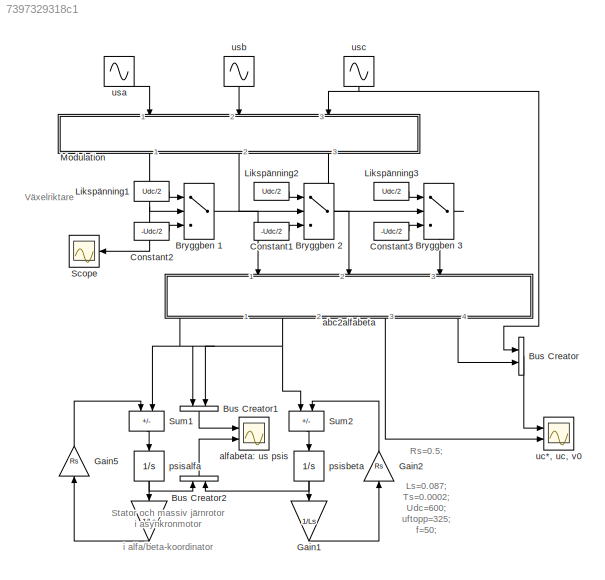
MODEL slx_7397329318c1
KIND model
CONFIG AbsTol = auto
CONFIG EnableMultiTasking = on
CONFIG FixedStep = auto
CONFIG MaxStep = auto
CONFIG MinStep = auto
CONFIG RelTol = 1e-6
CONFIG SampleTimeConstraint = Unconstrained
CONFIG SolverName = ode45
CONFIG StartTime = 0.0
CONFIG StopTime = 0.05
BLOCK [Switch] Bryggben 1
BLOCK [Switch] Bryggben 2
BLOCK [Switch] Bryggben 3
BLOCK [BusCreator] Bus Creator
  DisplayOption = bar
  InheritFromInputs = on
  Inputs = 2
  Ports = [2, 1]
BLOCK [BusCreator] Bus Creator1
  DisplayOption = bar
  InheritFromInputs = on
  Inputs = 2
  NameLocation = left
  Ports = [2, 1]
BLOCK [BusCreator] Bus Creator2
  DisplayOption = bar
  InheritFromInputs = on
  Inputs = 2
  NameLocation = right
  Ports = [2, 1]
BLOCK [Constant] Constant1
  Value = -Udc/2
BLOCK [Constant] Constant2
  Value = -Udc/2
BLOCK [Constant] Constant3
  Value = -Udc/2
BLOCK [Gain] Gain1
  Gain = 1/Ls
  NameLocation = left
  OutDataTypeStr = Inherit: Same as input
  ParamDataTypeStr = Inherit: Same as input
  SaturateOnIntegerOverflow = on
BLOCK [Gain] Gain2
  Gain = Rs
  NameLocation = right
  OutDataTypeStr = Inherit: Same as input
  ParamDataTypeStr = Inherit: Same as input
  SaturateOnIntegerOverflow = on
BLOCK [Gain] Gain3
  Gain = 1/Ls
  NameLocation = left
  OutDataTypeStr = Inherit: Same as input
  ParamDataTypeStr = Inherit: Same as input
  SaturateOnIntegerOverflow = on
BLOCK [Gain] Gain5
  Gain = Rs
  NameLocation = right
  OutDataTypeStr = Inherit: Same as input
  ParamDataTypeStr = Inherit: Same as input
  SaturateOnIntegerOverflow = on
BLOCK [Constant] Likspänning1
  NameLocation = top
  Value = Udc/2
BLOCK [Constant] Likspänning2
  NameLocation = top
  Value = Udc/2
BLOCK [Constant] Likspänning3
  NameLocation = top
  Value = Udc/2
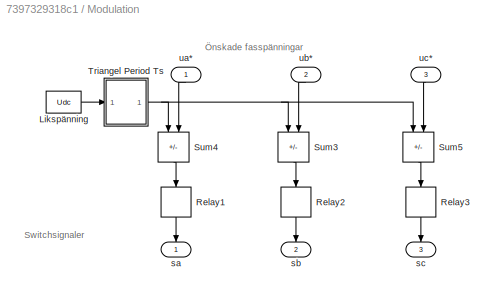
BLOCK [SubSystem] Modulation
  NameLocation = right
  Ports = [3, 3]
  RequestExecContextInheritance = off
BLOCK [Constant] Modulation/Likspänning
  Value = Udc
BLOCK [Relay] Modulation/Relay1
  NameLocation = right
  OffOutputValue = -0.001
  OnOutputValue = 1.01
BLOCK [Relay] Modulation/Relay2
  NameLocation = right
  OffOutputValue = -0.01
  OnOutputValue = 1.01
BLOCK [Relay] Modulation/Relay3
  NameLocation = right
  OffOutputValue = -0.01
  OnOutputValue = 1.01
BLOCK [Sum] Modulation/Sum3
  IconShape = rectangular
  InputSameDT = on
  Inputs = -+
  NameLocation = right
  OutDataTypeStr = Inherit: Same as first input
  Ports = [2, 1]
  SaturateOnIntegerOverflow = on
BLOCK [Sum] Modulation/Sum4
  IconShape = rectangular
  InputSameDT = on
  Inputs = -+
  NameLocation = right
  OutDataTypeStr = Inherit: Same as first input
  Ports = [2, 1]
  SaturateOnIntegerOverflow = on
BLOCK [Sum] Modulation/Sum5
  IconShape = rectangular
  InputSameDT = on
  Inputs = -+
  NameLocation = right
  OutDataTypeStr = Inherit: Same as first input
  Ports = [2, 1]
  SaturateOnIntegerOverflow = on
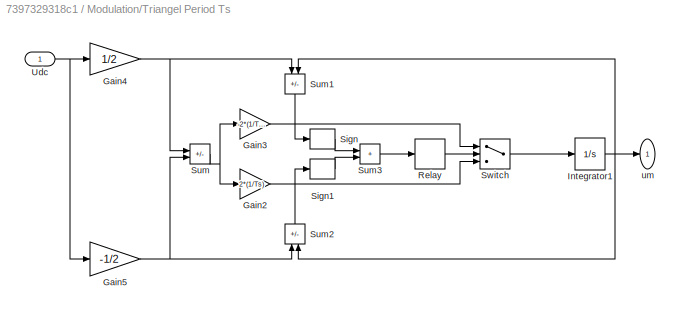
BLOCK [SubSystem] Modulation/Triangel Period Ts
  NameLocation = top
  Ports = [1, 1]
  RequestExecContextInheritance = off
BLOCK [Gain] Modulation/Triangel Period Ts/Gain2
  Gain = 2*(1/Ts)
  OutDataTypeStr = Inherit: Same as input
  ParamDataTypeStr = Inherit: Same as input
  SaturateOnIntegerOverflow = on
BLOCK [Gain] Modulation/Triangel Period Ts/Gain3
  Gain = -2*(1/Ts)
  OutDataTypeStr = Inherit: Same as input
  ParamDataTypeStr = Inherit: Same as input
  SaturateOnIntegerOverflow = on
BLOCK [Gain] Modulation/Triangel Period Ts/Gain4
  Gain = 1/2
  OutDataTypeStr = Inherit: Same as input
  ParamDataTypeStr = Inherit: Same as input
  SaturateOnIntegerOverflow = on
BLOCK [Gain] Modulation/Triangel Period Ts/Gain5
  Gain = -1/2
  OutDataTypeStr = Inherit: Same as input
  ParamDataTypeStr = Inherit: Same as input
  SaturateOnIntegerOverflow = on
BLOCK [Integrator] Modulation/Triangel Period Ts/Integrator1
  Ports = [1, 1]
BLOCK [Relay] Modulation/Triangel Period Ts/Relay
  OffOutputValue = -1
  OffSwitchValue = -1
  OnSwitchValue = 1
BLOCK [Signum] Modulation/Triangel Period Ts/Sign
BLOCK [Signum] Modulation/Triangel Period Ts/Sign1
BLOCK [Sum] Modulation/Triangel Period Ts/Sum
  IconShape = rectangular
  InputSameDT = on
  Inputs = +-
  OutDataTypeStr = Inherit: Same as first input
  Ports = [2, 1]
  SaturateOnIntegerOverflow = on
BLOCK [Sum] Modulation/Triangel Period Ts/Sum1
  IconShape = rectangular
  InputSameDT = on
  Inputs = -+
  NameLocation = left
  OutDataTypeStr = Inherit: Same as first input
  Ports = [2, 1]
  SaturateOnIntegerOverflow = on
BLOCK [Sum] Modulation/Triangel Period Ts/Sum2
  IconShape = rectangular
  InputSameDT = on
  Inputs = -+
  NameLocation = right
  OutDataTypeStr = Inherit: Same as first input
  Ports = [2, 1]
  SaturateOnIntegerOverflow = on
BLOCK [Sum] Modulation/Triangel Period Ts/Sum3
  IconShape = rectangular
  InputSameDT = on
  OutDataTypeStr = Inherit: Same as first input
  Ports = [2, 1]
  SaturateOnIntegerOverflow = on
BLOCK [Switch] Modulation/Triangel Period Ts/Switch
BLOCK [Inport] Modulation/Triangel Period Ts/Udc
BLOCK [Outport] Modulation/Triangel Period Ts/um
  VectorParamsAs1DForOutWhenUnconnected = off
BLOCK [Outport] Modulation/sa
  NameLocation = right
  VectorParamsAs1DForOutWhenUnconnected = off
BLOCK [Outport] Modulation/sb
  NameLocation = right
  Port = 2
  VectorParamsAs1DForOutWhenUnconnected = off
BLOCK [Outport] Modulation/sc
  NameLocation = right
  Port = 3
  VectorParamsAs1DForOutWhenUnconnected = off
BLOCK [Inport] Modulation/ua*
  NameLocation = right
BLOCK [Inport] Modulation/ub*
  NameLocation = right
  Port = 2
BLOCK [Inport] Modulation/uc*
  NameLocation = right
  Port = 3
BLOCK [Scope] Scope
  Floating = off
  NameLocation = top
  NumInputPorts = 1
  Ports = [1]
  ScopeSpecificationString = C++SS(StrPVP('Location','[39, 367, 1130, 606]'),StrPVP('Open','off'),StrPVP('ZoomMode','yonly'),MxPVP('AxesTitles',54,'struct(''axes1'',''%<SignalLabel>'')'),StrPVP('ShowLegends','off'),StrPVP('TimeRange','0.05'),StrPVP('YMin','-0.5034062253001612'),StrPVP('YMax','1.515864353193573'),StrPVP('SaveName','ScopeData2'),StrPVP('DataFormat','StructureWithTime'),StrPVP('LimitDataPoints','off'),StrPVP('Bl...<+88ch>
BLOCK [Sum] Sum1
  IconShape = rectangular
  Inputs = -+
  NameLocation = left
  Ports = [2, 1]
  SaturateOnIntegerOverflow = on
BLOCK [Sum] Sum2
  IconShape = rectangular
  Inputs = +-
  NameLocation = left
  Ports = [2, 1]
  SaturateOnIntegerOverflow = on
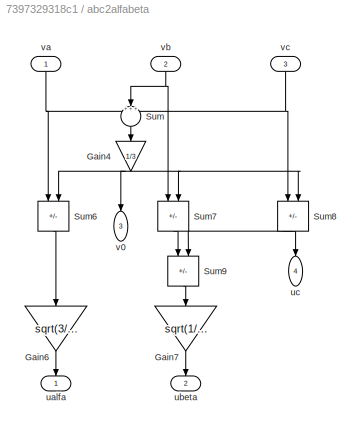
BLOCK [SubSystem] abc2alfabeta
  NameLocation = left
  Ports = [3, 4]
  RequestExecContextInheritance = off
BLOCK [Gain] abc2alfabeta/Gain4
  Gain = 1/3
  NameLocation = left
  OutDataTypeStr = Inherit: Same as input
  ParamDataTypeStr = Inherit: Same as input
  SaturateOnIntegerOverflow = on
BLOCK [Gain] abc2alfabeta/Gain6
  Gain = sqrt(3/2)
  NameLocation = left
  OutDataTypeStr = Inherit: Same as input
  ParamDataTypeStr = Inherit: Same as input
  SaturateOnIntegerOverflow = on
BLOCK [Gain] abc2alfabeta/Gain7
  Gain = sqrt(1/2)
  NameLocation = left
  OutDataTypeStr = Inherit: Same as input
  ParamDataTypeStr = Inherit: Same as input
  SaturateOnIntegerOverflow = on
BLOCK [Sum] abc2alfabeta/Sum
  Inputs = +++
  NameLocation = left
  Ports = [3, 1]
BLOCK [Sum] abc2alfabeta/Sum6
  IconShape = rectangular
  InputSameDT = on
  Inputs = +-
  NameLocation = right
  OutDataTypeStr = Inherit: Same as first input
  Ports = [2, 1]
  SaturateOnIntegerOverflow = on
BLOCK [Sum] abc2alfabeta/Sum7
  IconShape = rectangular
  InputSameDT = on
  Inputs = +-
  NameLocation = right
  OutDataTypeStr = Inherit: Same as first input
  Ports = [2, 1]
  SaturateOnIntegerOverflow = on
BLOCK [Sum] abc2alfabeta/Sum8
  IconShape = rectangular
  InputSameDT = on
  Inputs = +-
  NameLocation = right
  OutDataTypeStr = Inherit: Same as first input
  Ports = [2, 1]
  SaturateOnIntegerOverflow = on
BLOCK [Sum] abc2alfabeta/Sum9
  IconShape = rectangular
  InputSameDT = on
  Inputs = +-
  NameLocation = right
  OutDataTypeStr = Inherit: Same as first input
  Ports = [2, 1]
  SaturateOnIntegerOverflow = on
BLOCK [Outport] abc2alfabeta/ualfa
  NameLocation = right
  VectorParamsAs1DForOutWhenUnconnected = off
BLOCK [Outport] abc2alfabeta/ubeta
  NameLocation = right
  Port = 2
  VectorParamsAs1DForOutWhenUnconnected = off
BLOCK [Outport] abc2alfabeta/uc
  NameLocation = left
  Port = 4
  VectorParamsAs1DForOutWhenUnconnected = off
BLOCK [Outport] abc2alfabeta/v0
  NameLocation = left
  Port = 3
  VectorParamsAs1DForOutWhenUnconnected = off
BLOCK [Inport] abc2alfabeta/va
  NameLocation = right
BLOCK [Inport] abc2alfabeta/vb
  NameLocation = right
  Port = 2
BLOCK [Inport] abc2alfabeta/vc
  NameLocation = right
  Port = 3
BLOCK [Scope] alfabeta: us psis
  Floating = off
  NumInputPorts = 2
  Ports = [2]
  ScopeSpecificationString = Simulink.scopes.TimeScopeBlockCfg('CurrentConfiguration', extmgr.ConfigurationSet(extmgr.Configuration('Core','General UI',true),extmgr.Configuration('Core','Source UI',true),extmgr.Configuration('Sources','WiredSimulink',true,'DataLogging',true,'DataLoggingVariableName','uspsis','DataLoggingSaveFormat','StructureWithTime','DataLoggingDecimation','1','DataLoggingDecimateData',true),extmgr.Configur...<+2726ch>
BLOCK [Integrator] psisalfa
  InitialCondition = -1.24
  NameLocation = left
  Ports = [1, 1]
BLOCK [Integrator] psisbeta
  NameLocation = right
  Ports = [1, 1]
BLOCK [Scope] uc*, uc, v0
  Floating = off
  NumInputPorts = 2
  Ports = [2]
  ScopeSpecificationString = C++SS(StrPVP('Location','[49, 58, 1269, 297]'),StrPVP('Open','off'),MxPVP('AxesTitles',54,'struct(''axes1'',''%<SignalLabel>'',''axes2'',''%<SignalLabel>'')'),MxPVP('ScopeGraphics',57,'struct(''FigureColor'',''[0.5 0.5 0.5]'',''AxesColor'',''[0 0 0]'',''AxesTickColor'',''[1 1 1]'',''LineColors'',''[1 1 0;1 0 1;0 1 1;1 0 0;0 1 0;0 0 1]'',''LineStyles'',''-|-|-|-|-|-'',''LineWidths'',''[0.5 0.5 0.5 ...<+347ch>
BLOCK [Sin] usa
  Amplitude = uftopp
  Frequency = 2*pi*f
  NameLocation = left
  Ports = [0, 1]
  SampleTime = 0
BLOCK [Sin] usb
  Amplitude = uftopp
  Frequency = 2*pi*f
  NameLocation = left
  Phase = -2*pi/3
  Ports = [0, 1]
  SampleTime = 0
BLOCK [Sin] usc
  Amplitude = uftopp
  Frequency = 2*pi*f
  NameLocation = left
  Phase = -4*pi/3
  Ports = [0, 1]
  SampleTime = 0
ANNOTATION (root): Rs=0.5; Ls=0.087; Ts=0.0002; Udc=600; uftopp=325; f=50;
ANNOTATION (root): Stator och massiv järnrotor i asynkronmotor i alfa/beta-koordinator
ANNOTATION (root): Växelriktare
ANNOTATION Modulation: Switchsignaler
ANNOTATION Modulation: Önskade fasspänningar
LINE Bryggben 1:1 -> abc2alfabeta:1
LINE Bryggben 2:1 -> abc2alfabeta:2
LINE Bryggben 3:1 -> abc2alfabeta:3
LINE Bus Creator1:1 -> alfabeta: us psis:1
LINE Bus Creator2:1 -> alfabeta: us psis:2
LINE Bus Creator:1 -> uc*, uc, v0:1
LINE Constant1:1 -> Bryggben 2:3
LINE Constant2:1 -> Bryggben 1:3
LINE Constant3:1 -> Bryggben 3:3
LINE Gain1:1 -> Gain2:1
LINE Gain2:1 -> Sum2:2
LINE Gain3:1 -> Gain5:1
LINE Gain5:1 -> Sum1:1
LINE Likspänning1:1 -> Bryggben 1:1
LINE Likspänning2:1 -> Bryggben 2:1
LINE Likspänning3:1 -> Bryggben 3:1
LINE Modulation/Likspänning:1 -> Modulation/Triangel Period Ts:1
LINE Modulation/Relay1:1 -> Modulation/sa:1
LINE Modulation/Relay2:1 -> Modulation/sb:1
LINE Modulation/Relay3:1 -> Modulation/sc:1
LINE Modulation/Sum3:1 -> Modulation/Relay2:1
LINE Modulation/Sum4:1 -> Modulation/Relay1:1
LINE Modulation/Sum5:1 -> Modulation/Relay3:1
LINE Modulation/Triangel Period Ts/Gain2:1 -> Modulation/Triangel Period Ts/Switch:3
LINE Modulation/Triangel Period Ts/Gain3:1 -> Modulation/Triangel Period Ts/Switch:1
NET Modulation/Triangel Period Ts/Gain4:1 -> Modulation/Triangel Period Ts/Sum1:1, Modulation/Triangel Period Ts/Sum:1
NET Modulation/Triangel Period Ts/Gain5:1 -> Modulation/Triangel Period Ts/Sum2:1, Modulation/Triangel Period Ts/Sum:2
NET Modulation/Triangel Period Ts/Integrator1:1 -> Modulation/Triangel Period Ts/Sum1:2, Modulation/Triangel Period Ts/Sum2:2, Modulation/Triangel Period Ts/um:1
LINE Modulation/Triangel Period Ts/Relay:1 -> Modulation/Triangel Period Ts/Switch:2
LINE Modulation/Triangel Period Ts/Sign1:1 -> Modulation/Triangel Period Ts/Sum3:2
LINE Modulation/Triangel Period Ts/Sign:1 -> Modulation/Triangel Period Ts/Sum3:1
LINE Modulation/Triangel Period Ts/Sum1:1 -> Modulation/Triangel Period Ts/Sign:1
LINE Modulation/Triangel Period Ts/Sum2:1 -> Modulation/Triangel Period Ts/Sign1:1
LINE Modulation/Triangel Period Ts/Sum3:1 -> Modulation/Triangel Period Ts/Relay:1
NET Modulation/Triangel Period Ts/Sum:1 -> Modulation/Triangel Period Ts/Gain2:1, Modulation/Triangel Period Ts/Gain3:1
LINE Modulation/Triangel Period Ts/Switch:1 -> Modulation/Triangel Period Ts/Integrator1:1
NET Modulation/Triangel Period Ts/Udc:1 -> Modulation/Triangel Period Ts/Gain4:1, Modulation/Triangel Period Ts/Gain5:1
NET Modulation/Triangel Period Ts:1 -> Modulation/Sum3:1, Modulation/Sum4:1, Modulation/Sum5:1
LINE Modulation/ua*:1 -> Modulation/Sum4:2
LINE Modulation/ub*:1 -> Modulation/Sum3:2
LINE Modulation/uc*:1 -> Modulation/Sum5:2
NET Modulation:1 -> Bryggben 1:2, Scope:1
LINE Modulation:2 -> Bryggben 2:2
LINE Modulation:3 -> Bryggben 3:2
LINE Sum1:1 -> psisalfa:1
LINE Sum2:1 -> psisbeta:1
NET abc2alfabeta/Gain4:1 -> abc2alfabeta/Sum6:2, abc2alfabeta/Sum7:2, abc2alfabeta/Sum8:2, abc2alfabeta/v0:1
LINE abc2alfabeta/Gain6:1 -> abc2alfabeta/ualfa:1
LINE abc2alfabeta/Gain7:1 -> abc2alfabeta/ubeta:1
LINE abc2alfabeta/Sum6:1 -> abc2alfabeta/Gain6:1
LINE abc2alfabeta/Sum7:1 -> abc2alfabeta/Sum9:1
NET abc2alfabeta/Sum8:1 -> abc2alfabeta/Sum9:2, abc2alfabeta/uc:1
LINE abc2alfabeta/Sum9:1 -> abc2alfabeta/Gain7:1
LINE abc2alfabeta/Sum:1 -> abc2alfabeta/Gain4:1
NET abc2alfabeta/va:1 -> abc2alfabeta/Sum6:1, abc2alfabeta/Sum:1
NET abc2alfabeta/vb:1 -> abc2alfabeta/Sum7:1, abc2alfabeta/Sum:2
NET abc2alfabeta/vc:1 -> abc2alfabeta/Sum8:1, abc2alfabeta/Sum:3
NET abc2alfabeta:1 -> Bus Creator1:1, Sum1:2
NET abc2alfabeta:2 -> Bus Creator1:2, Sum2:1
LINE abc2alfabeta:3 -> uc*, uc, v0:2
LINE abc2alfabeta:4 -> Bus Creator:2
NET psisalfa:1 -> Bus Creator2:1, Gain3:1
NET psisbeta:1 -> Bus Creator2:2, Gain1:1
LINE usa:1 -> Modulation:1
LINE usb:1 -> Modulation:2
NET usc:1 -> Bus Creator:1, Modulation:3
note: NET lines group one-source signal fan-out (src -> all destinations, sorted); 1:1 wires keep LINE
